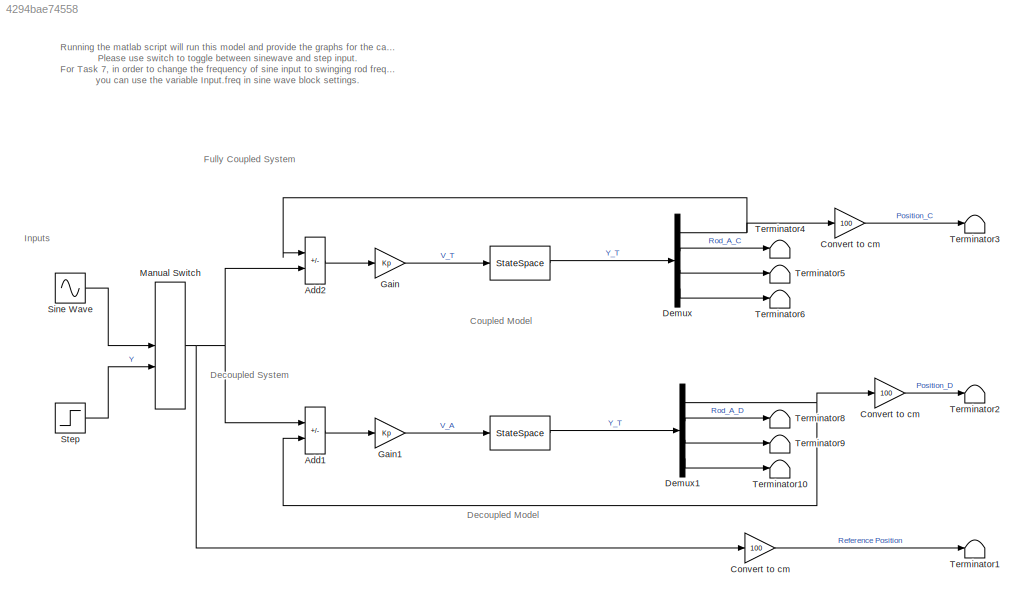
MODEL slx_4294bae74558
KIND model
CONFIG AbsTol = auto
CONFIG EnableMultiTasking = on
CONFIG FixedStep = simPrm.dt
CONFIG MaxStep = 1/30
CONFIG MinStep = auto
CONFIG RelTol = 1e-3
CONFIG SampleTimeConstraint = Unconstrained
CONFIG Solver = ode3
CONFIG SolverName = ode3
CONFIG StartTime = 0.0
CONFIG StopTime = simPrm.tEnd
BLOCK [StateSpace]  
  A = Ac
  B = Bc
  C = Cc
  D = Dc
  InitialCondition = [0;0;0;0]
  Ports = [1, 1]
BLOCK [StateSpace]   
  A = Ad
  B = Bd
  C = Cd
  D = Dd
  InitialCondition = [0;0;0;0]
  Ports = [1, 1]
BLOCK [Sum] Add1
  IconShape = rectangular
  Inputs = +-
  Ports = [2, 1]
BLOCK [Sum] Add2
  IconShape = rectangular
  Inputs = -+
  Ports = [2, 1]
BLOCK [Gain] Convert to cm
  Gain = 100
BLOCK [Gain] Convert to cm 
  Gain = 100
BLOCK [Gain] Convert to cm  
  Gain = 100
BLOCK [Demux] Demux
  Ports = [1, 4]
BLOCK [Demux] Demux1
  Ports = [1, 4]
BLOCK [Gain] Gain
  Gain = Kp
BLOCK [Gain] Gain1
  Gain = Kp
BLOCK [ManualSwitch] Manual Switch
BLOCK [Sin] Sine Wave
  Amplitude = Input.Ref
  Frequency = 1.0
  Ports = [0, 1]
  SampleTime = 0
BLOCK [Step] Step
  After = Input.Ref
  SampleTime = 0
BLOCK [Terminator] Terminator1
BLOCK [Terminator] Terminator10
BLOCK [Terminator] Terminator2
BLOCK [Terminator] Terminator3
BLOCK [Terminator] Terminator4
BLOCK [Terminator] Terminator5
BLOCK [Terminator] Terminator6
BLOCK [Terminator] Terminator8
BLOCK [Terminator] Terminator9
ANNOTATION (root): Decoupled System
ANNOTATION (root): Fully Coupled System
ANNOTATION (root): Decoupled Model
ANNOTATION (root): Running the matlab script will run this model and provide the graphs for the cart position. Please use switch to toggle between sinewave and step input. For Task 7, in order to change the frequency of sine input to swinging rod frequency, you can use the variable Input.freq in sine wave block settings.
ANNOTATION (root): Coupled Model
ANNOTATION (root): Inputs
LINE   :1 -> Demux1:1
LINE  :1 -> Demux:1
LINE Add1:1 -> Gain1:1
LINE Add2:1 -> Gain:1
LINE Convert to cm  :1 -> Terminator3:1
LINE Convert to cm :1 -> Terminator2:1
LINE Convert to cm:1 -> Terminator1:1
NET Demux1:1 -> Add1:2, Convert to cm :1
LINE Demux1:2 -> Terminator8:1
LINE Demux1:3 -> Terminator9:1
LINE Demux1:4 -> Terminator10:1
NET Demux:1 -> Add2:1, Convert to cm  :1
LINE Demux:2 -> Terminator4:1
LINE Demux:3 -> Terminator5:1
LINE Demux:4 -> Terminator6:1
LINE Gain1:1 ->   :1
LINE Gain:1 ->  :1
NET Manual Switch:1 -> Add1:1, Add2:2, Convert to cm:1
LINE Sine Wave:1 -> Manual Switch:1
LINE Step:1 -> Manual Switch:2
note: NET lines group one-source signal fan-out (src -> all destinations, sorted); 1:1 wires keep LINE
